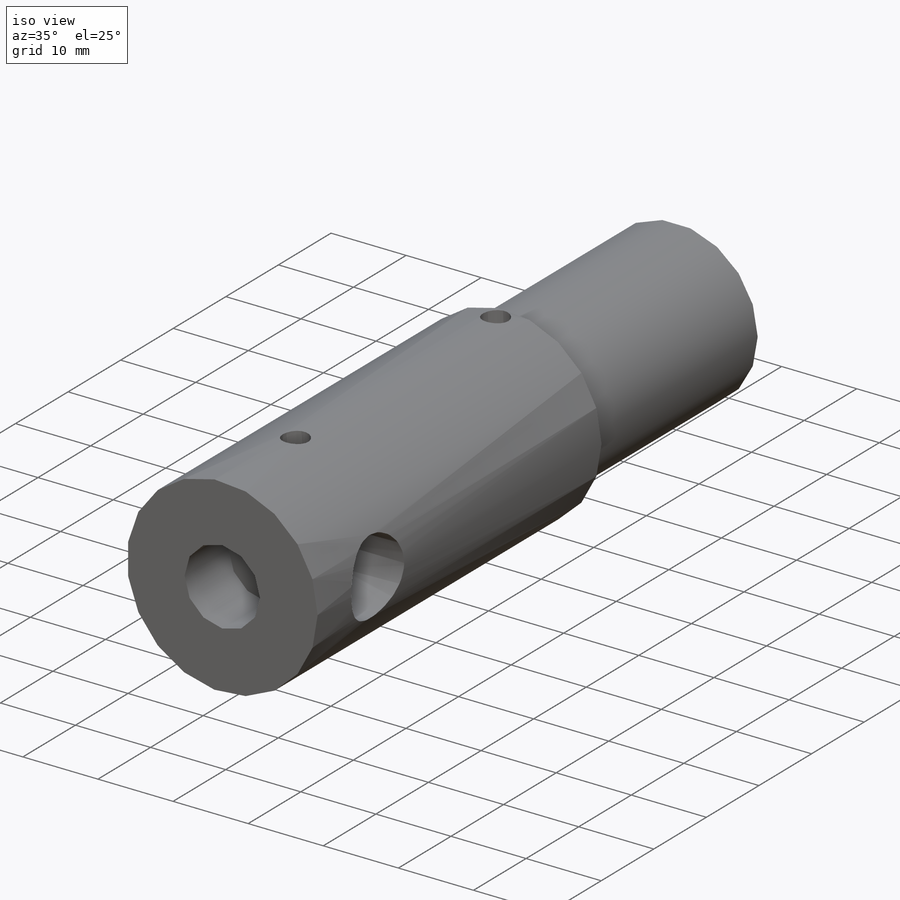
[diagram: iso view]
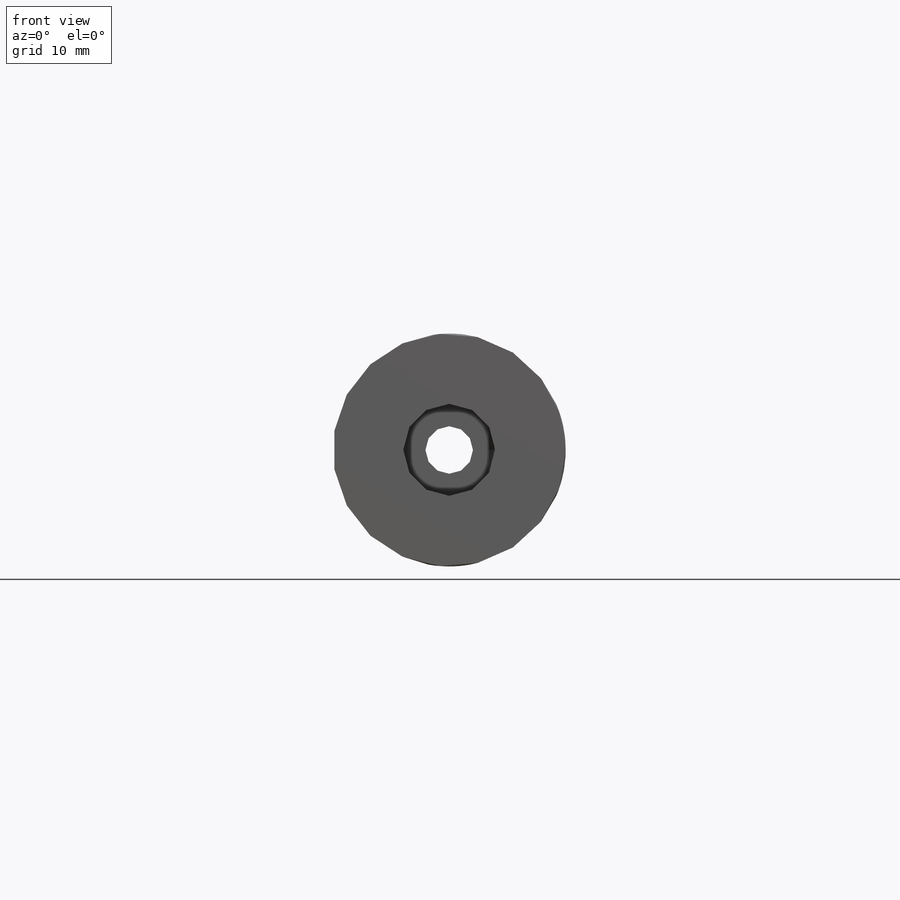
[diagram: front view]
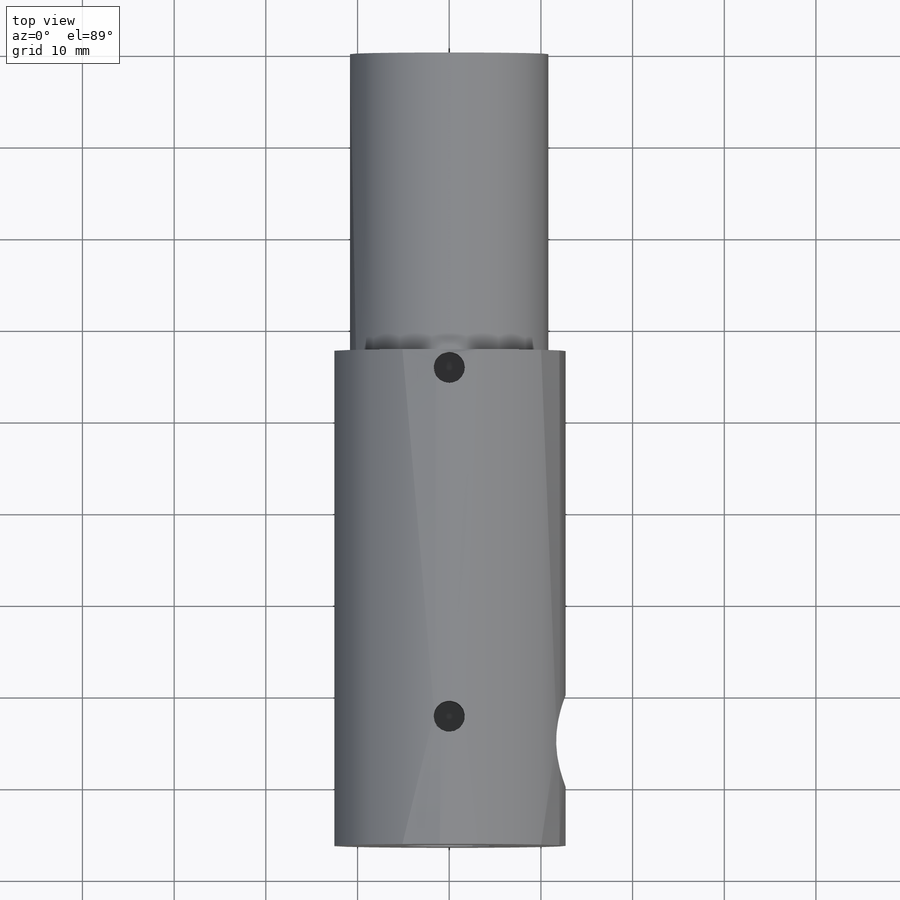
[diagram: top view]
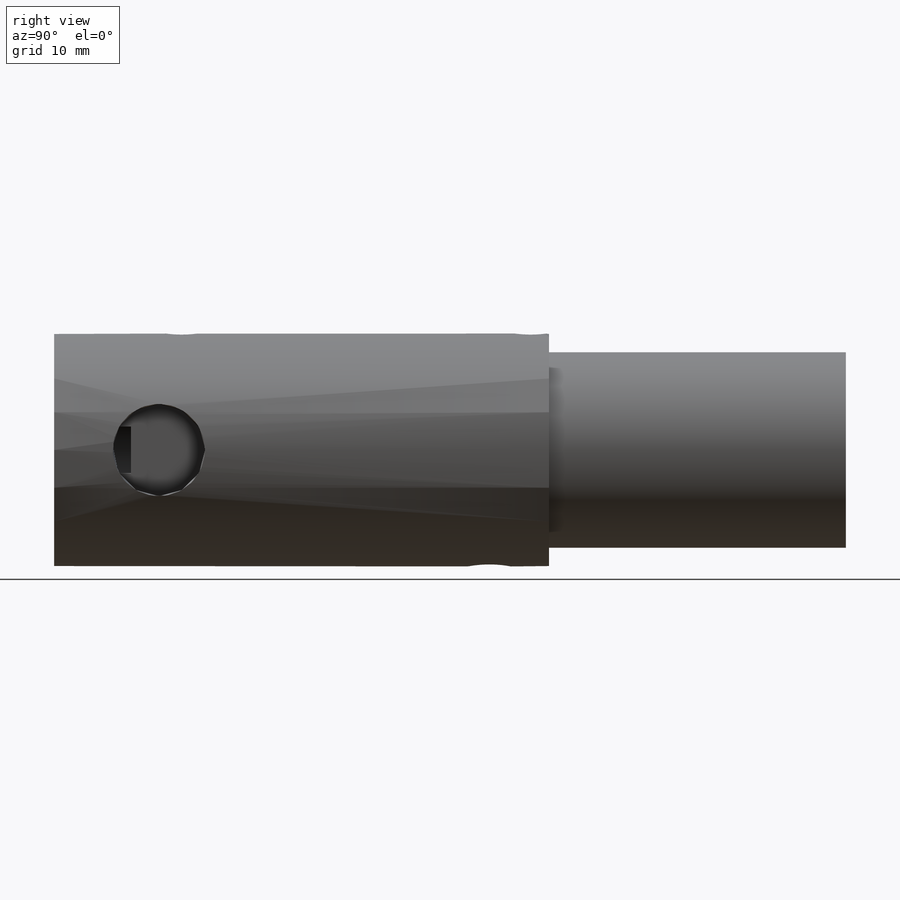
[diagram: right view]
SOLIDWORKS PART (.sldprt)
format: sldprt  version: not decoded by parser v0  size: 271,872 bytes
history: native  units: mm
features: sketch x8, cut_extrude x5, extrude x3, plane x3, material x1 (+13 scaffold rows collapsed)
feature tree (33):
  scaffold x13  (default folders/planes/origin — collapsed)
  material  "6061 Alloy"
  sketch  "Sketch1"  dims[D1=~13.201087mm]
  extrude  "Extrude1"  Depth=86.36mm
  sketch  "Sketch2"  dims[D1=2.54mm]
  extrude  "Extrude2"  Depth=53.975mm
  sketch  "Sketch3"  dims[D1=8.7122mm]
  extrude  "Extrude3"  Depth=35.3822mm
  sketch  "Sketch4"  dims[D1=9.2202mm]
  cut_extrude  "Cut-Extrude1"  Depth=2.3876mm
  plane  "Plane2"  Offset=12.7mm
  sketch  "Sketch15"  dims[D1=38.8874mm]
  cut_extrude  "Cut-Extrude5"  Depth=7.2644mm
  plane  "Plane3"  Offset=12.7mm
  sketch  "Sketch17"  dims[D1=72.4408mm]
  cut_extrude  "Cut-Extrude6"  Depth=4.572mm
  sketch  "Sketch18"  dims[D1=~5.620288mm]
  cut_extrude  "Cut-Extrude7"  Depth=8.382mm
  plane  "Plane4"  Offset=12.7mm
  sketch  "Sketch19"  dims[D1=74.93mm]
  cut_extrude  "Cut-Extrude8"  Depth=8.382mm
decode coverage: 16 of 16 modeling features carry decoded parameters
note: ~ marks probable driven/reference dimensions
note: suppression state not decoded; provenance and decode notes live in map.json
